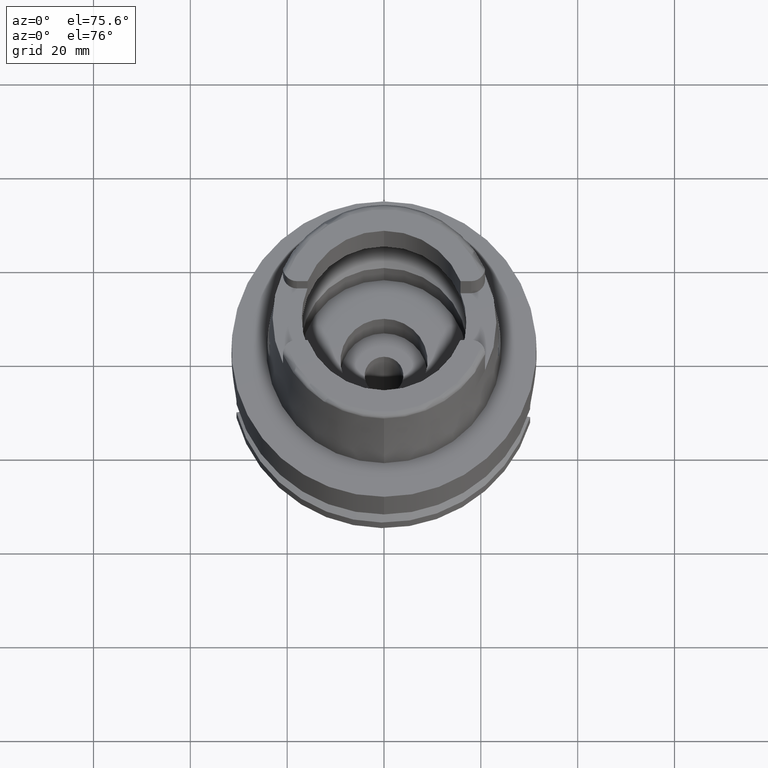
[diagram: clean part render]
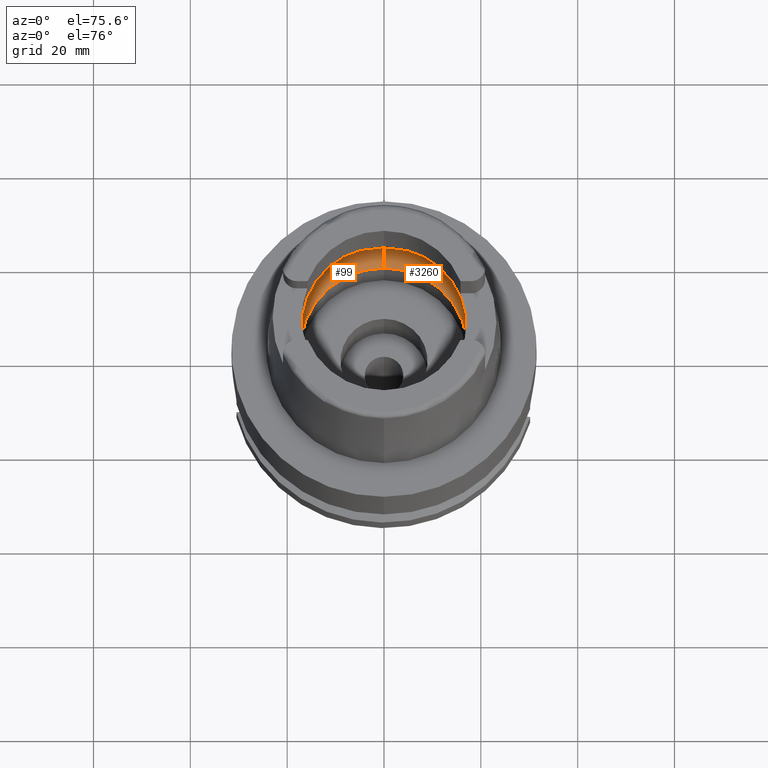
[diagram: same view with one multi-face feature highlighted, each face labeled with its STEP entity id]
A machine part, auxiliary view. The highlighted faces form ONE feature: a constant-radius fillet chain: 2 tangent blend faces with common blend radius 8 mm. The faces share edges in the B-rep.
Their STEP definitions:
[1] entity #3260 (Torus):
#36 = CIRCLE ( 'NONE', #2289, 20.00000000000001421 ) ;
#204 = CARTESIAN_POINT ( 'NONE',  ( 19.92840408989147960, -1.244367451165427463, 5.462313551788925636 ) ) ;
#230 = CARTESIAN_POINT ( 'NONE',  ( 19.92591688601885025, -1.321756895885540795, 5.490652547663943395 ) ) ;
#258 = CARTESIAN_POINT ( 'NONE',  ( 0.0000000000000000000, 17.25000000000000000, 0.1499999999999999944 ) ) ;
#344 = DIRECTION ( 'NONE',  ( 0.0000000000000000000, 0.0000000000000000000, -1.000000000000000000 ) ) ;
#485 = EDGE_CURVE ( 'NONE', #5537, #4419, #3639, .T. ) ;
#546 = B_SPLINE_CURVE_WITH_KNOTS ( 'NONE', 3,
 ( #3693, #5331, #2398, #3187, #2369, #2848, #4925, #1945, #4574, #4091, #1083, #639, #1479, #4517, #2345 ),
 .UNSPECIFIED., .F., .F.,
 ( 4, 2, 2, 1, 1, 1, 2, 2, 4 ),
 ( 0.0000000000000000000, 0.2500000000000015543, 0.3750000000000022204, 0.4375000000000023315, 0.4687500000000024425, 0.4843750000000026090, 0.4921875000000026090, 0.5000000000000025535, 1.000000000000000000 ),
 .UNSPECIFIED. ) ;
#602 = AXIS2_PLACEMENT_3D ( 'NONE', #2668, #1913, #5354 ) ;
#606 = CARTESIAN_POINT ( 'NONE',  ( 19.94501428475999916, -0.2480014564252240872, 5.250000000000000000 ) ) ;
#639 = CARTESIAN_POINT ( 'NONE',  ( 19.92547029497421818, 1.335024297797994697, 5.495681079272209502 ) ) ;
#985 = ORIENTED_EDGE ( 'NONE', *, *, #3016, .F. ) ;
#1020 = CARTESIAN_POINT ( 'NONE',  ( 19.92705978488601559, -1.286927501709047350, 5.477698479286130961 ) ) ;
#1038 = CARTESIAN_POINT ( 'NONE',  ( 0.0000000000000000000, -17.25000000000000000, 0.1500000000000999700 ) ) ;
#1079 = CARTESIAN_POINT ( 'NONE',  ( 19.88332298883960547, -2.178372382681698749, 5.921392606572648099 ) ) ;
#1083 = CARTESIAN_POINT ( 'NONE',  ( 19.92517807509134187, 1.343606312468685893, 5.498959791250855211 ) ) ;
#1087 = VERTEX_POINT ( 'NONE', #1038 ) ;
#1090 = VERTEX_POINT ( 'NONE', #1091 ) ;
#1091 = CARTESIAN_POINT ( 'NONE',  ( 0.0000000000000000000, -20.00000000000000000, 6.186348233825000875 ) ) ;
#1096 = DIRECTION ( 'NONE',  ( 0.0000000000000000000, 0.0000000000000000000, -1.000000000000000000 ) ) ;
#1105 = CARTESIAN_POINT ( 'NONE',  ( 19.93655177456163941, -0.9261205412522953706, 5.364559693844707766 ) ) ;
#1133 = CARTESIAN_POINT ( 'NONE',  ( 19.93856665794220717, -0.8185641889834129881, 5.338679171497147991 ) ) ;
#1350 = AXIS2_PLACEMENT_3D ( 'NONE', #5033, #344, #4248 ) ;
#1479 = CARTESIAN_POINT ( 'NONE',  ( 19.93856678297499840, 0.9459609421639848525, 5.348221403789784389 ) ) ;
#1501 = CARTESIAN_POINT ( 'NONE',  ( 19.93096047318056918, -1.157940144637055413, 5.432579051136762871 ) ) ;
#1556 = CARTESIAN_POINT ( 'NONE',  ( 19.94501428475999916, 0.0000000000000000000, 5.250000000000000000 ) ) ;
#1611 = CIRCLE ( 'NONE', #4025, 17.25000000000000000 ) ;
#1669 = DIRECTION ( 'NONE',  ( 0.0000000000000000000, 0.0000000000000000000, 1.000000000000000000 ) ) ;
#1688 = B_SPLINE_CURVE_WITH_KNOTS ( 'NONE', 3,
 ( #1556, #606, #5301, #1133, #1105, #4109, #1501, #204, #1020, #3602, #2807, #230, #1910, #1079, #4565 ),
 .UNSPECIFIED., .F., .F.,
 ( 4, 2, 2, 1, 1, 1, 2, 2, 4 ),
 ( 0.0000000000000000000, 0.2499999999999987232, 0.3749999999999981126, 0.4374999999999980016, 0.4687499999999979461, 0.4843749999999978906, 0.4921874999999978906, 0.4999999999999978906, 1.000000000000000000 ),
 .UNSPECIFIED. ) ;
#1726 = ORIENTED_EDGE ( 'NONE', *, *, #3214, .F. ) ;
#1748 = CIRCLE ( 'NONE', #2548, 7.999999999999992895 ) ;
#1832 = ORIENTED_EDGE ( 'NONE', *, *, #485, .F. ) ;
#1874 = CARTESIAN_POINT ( 'NONE',  ( 19.84575864665999845, -2.479085262491000030, 6.186348233825000875 ) ) ;
#1876 = TOROIDAL_SURFACE ( 'NONE', #1350, 12.00000000000000000, 8.000000000000000000 ) ;
#1910 = CARTESIAN_POINT ( 'NONE',  ( 19.90996057472179359, -1.795819818635375986, 5.670329850438289299 ) ) ;
#1913 = DIRECTION ( 'NONE',  ( 0.0000000000000000000, 0.0000000000000000000, -1.000000000000000000 ) ) ;
#1945 = CARTESIAN_POINT ( 'NONE',  ( 19.92208516036315658, 1.430034890835472972, 5.533133253826981957 ) ) ;
#2094 = CARTESIAN_POINT ( 'NONE',  ( 0.0000000000000000000, 12.00000000000000000, 6.186348233825000875 ) ) ;
#2286 = CARTESIAN_POINT ( 'NONE',  ( 19.84575864665999845, 2.479085262491000030, 6.186348233825000875 ) ) ;
#2289 = AXIS2_PLACEMENT_3D ( 'NONE', #3737, #1096, #4557 ) ;
#2345 = CARTESIAN_POINT ( 'NONE',  ( 19.94501428475999916, 0.0000000000000000000, 5.250000000000000000 ) ) ;
#2369 = CARTESIAN_POINT ( 'NONE',  ( 19.90654467646836778, 1.770005132905162482, 5.691879807082752762 ) ) ;
#2398 = CARTESIAN_POINT ( 'NONE',  ( 19.88058974809684898, 2.158412543077528056, 5.925203020060026304 ) ) ;
#2424 = CARTESIAN_POINT ( 'NONE',  ( 0.0000000000000000000, 20.00000000000000000, 6.186348233825000875 ) ) ;
#2445 = VERTEX_POINT ( 'NONE', #1874 ) ;
#2548 = AXIS2_PLACEMENT_3D ( 'NONE', #3744, #4192, #2836 ) ;
#2668 = CARTESIAN_POINT ( 'NONE',  ( 0.0000000000000000000, 0.0000000000000000000, 6.186348233825000875 ) ) ;
#2807 = CARTESIAN_POINT ( 'NONE',  ( 19.92607280685506410, -1.317062051809039680, 5.488890658979321380 ) ) ;
#2836 = DIRECTION ( 'NONE',  ( 0.0000000000000000000, -0.6562500000000006661, -0.7545435292281016393 ) ) ;
#2848 = CARTESIAN_POINT ( 'NONE',  ( 19.91448547043104256, 1.610506059394627654, 5.612923151450863735 ) ) ;
#2930 = DIRECTION ( 'NONE',  ( 0.0000000000000000000, 0.6562500000000006661, -0.7545435292281016393 ) ) ;
#3016 = EDGE_CURVE ( 'NONE', #4874, #2445, #1688, .T. ) ;
#3187 = CARTESIAN_POINT ( 'NONE',  ( 19.90056803128309326, 1.871071076466524818, 5.748193068415501372 ) ) ;
#3214 = EDGE_CURVE ( 'NONE', #1087, #4849, #1611, .T. ) ;
#3260 = ADVANCED_FACE ( 'NONE', ( #5496 ), #1876, .F. ) ;
#3267 = AXIS2_PLACEMENT_3D ( 'NONE', #2094, #4286, #2930 ) ;
#3301 = EDGE_LOOP ( 'NONE', ( #4997, #1832, #3362, #1726, #5380, #4596, #985 ) ) ;
#3353 = CIRCLE ( 'NONE', #3267, 7.999999999999992895 ) ;
#3362 = ORIENTED_EDGE ( 'NONE', *, *, #4251, .F. ) ;
#3399 = CARTESIAN_POINT ( 'NONE',  ( 0.0000000000000000000, 0.0000000000000000000, 0.1500000000000999700 ) ) ;
#3602 = CARTESIAN_POINT ( 'NONE',  ( 19.92646948702060428, -1.305026996780979109, 5.484399654313516059 ) ) ;
#3639 = CIRCLE ( 'NONE', #602, 20.00000000000000000 ) ;
#3693 = CARTESIAN_POINT ( 'NONE',  ( 19.84575864665999845, 2.479085262491000030, 6.186348233825000875 ) ) ;
#3737 = CARTESIAN_POINT ( 'NONE',  ( 0.0000000000000000000, 0.0000000000000000000, 6.186348233825000875 ) ) ;
#3744 = CARTESIAN_POINT ( 'NONE',  ( 0.0000000000000000000, -12.00000000000000000, 6.186348233825000875 ) ) ;
#3746 = DIRECTION ( 'NONE',  ( 0.0000000000000000000, -1.000000000000000000, 0.0000000000000000000 ) ) ;
#4025 = AXIS2_PLACEMENT_3D ( 'NONE', #3399, #1669, #3746 ) ;
#4091 = CARTESIAN_POINT ( 'NONE',  ( 19.92467636941975329, 1.358114210472420869, 5.504562079295808985 ) ) ;
#4109 = CARTESIAN_POINT ( 'NONE',  ( 19.93292498447662808, -1.081634996230508072, 5.408973391345252679 ) ) ;
#4113 = EDGE_CURVE ( 'NONE', #4419, #4874, #546, .T. ) ;
#4192 = DIRECTION ( 'NONE',  ( -1.000000000000000000, 0.0000000000000000000, 0.0000000000000000000 ) ) ;
#4248 = DIRECTION ( 'NONE',  ( 0.0000000000000000000, -1.000000000000000000, 0.0000000000000000000 ) ) ;
#4251 = EDGE_CURVE ( 'NONE', #4849, #5537, #3353, .T. ) ;
#4286 = DIRECTION ( 'NONE',  ( 1.000000000000000000, 0.0000000000000000000, 0.0000000000000000000 ) ) ;
#4419 = VERTEX_POINT ( 'NONE', #2286 ) ;
#4517 = CARTESIAN_POINT ( 'NONE',  ( 19.94501428475999560, 0.4960390492939688589, 5.249999999999998224 ) ) ;
#4557 = DIRECTION ( 'NONE',  ( 0.9922879323327794543, -0.1239542631244973381, 0.0000000000000000000 ) ) ;
#4565 = CARTESIAN_POINT ( 'NONE',  ( 19.84575864665999845, -2.479085262491000030, 6.186348233825000875 ) ) ;
#4574 = CARTESIAN_POINT ( 'NONE',  ( 19.92391580955442976, 1.379816291123153960, 5.513020213660540847 ) ) ;
#4596 = ORIENTED_EDGE ( 'NONE', *, *, #5087, .F. ) ;
#4839 = EDGE_CURVE ( 'NONE', #1087, #1090, #1748, .T. ) ;
#4849 = VERTEX_POINT ( 'NONE', #258 ) ;
#4874 = VERTEX_POINT ( 'NONE', #5031 ) ;
#4925 = CARTESIAN_POINT ( 'NONE',  ( 19.91819982395854893, 1.528784657196633257, 5.574824959534048219 ) ) ;
#4997 = ORIENTED_EDGE ( 'NONE', *, *, #4113, .F. ) ;
#5031 = CARTESIAN_POINT ( 'NONE',  ( 19.94501428475999916, 0.0000000000000000000, 5.250000000000000000 ) ) ;
#5033 = CARTESIAN_POINT ( 'NONE',  ( 0.0000000000000000000, 0.0000000000000000000, 6.186348233825000875 ) ) ;
#5087 = EDGE_CURVE ( 'NONE', #2445, #1090, #36, .T. ) ;
#5301 = CARTESIAN_POINT ( 'NONE',  ( 19.94340237805554494, -0.4850180025758214497, 5.274610396208616159 ) ) ;
#5331 = CARTESIAN_POINT ( 'NONE',  ( 19.86453976246540520, 2.328737270380783375, 6.053877863480496835 ) ) ;
#5354 = DIRECTION ( 'NONE',  ( 0.0000000000000000000, 1.000000000000000000, 0.0000000000000000000 ) ) ;
#5380 = ORIENTED_EDGE ( 'NONE', *, *, #4839, .T. ) ;
#5496 = FACE_OUTER_BOUND ( 'NONE', #3301, .T. ) ;
#5537 = VERTEX_POINT ( 'NONE', #2424 ) ;
[2] entity #99 (Torus):
#11 = CARTESIAN_POINT ( 'NONE',  ( -19.94501428475999916, 0.0000000000000000000, 5.250000000000000000 ) ) ;
#96 = EDGE_CURVE ( 'NONE', #4083, #5272, #3000, .T. ) ;
#99 = ADVANCED_FACE ( 'NONE', ( #4789 ), #2375, .F. ) ;
#258 = CARTESIAN_POINT ( 'NONE',  ( 0.0000000000000000000, 17.25000000000000000, 0.1499999999999999944 ) ) ;
#278 = ORIENTED_EDGE ( 'NONE', *, *, #1909, .F. ) ;
#302 = DIRECTION ( 'NONE',  ( -0.9922879323327794543, 0.1239542631244973381, 0.0000000000000000000 ) ) ;
#444 = CARTESIAN_POINT ( 'NONE',  ( -19.92391568384003975, -1.379820152731458194, 5.513021742193493502 ) ) ;
#449 = EDGE_CURVE ( 'NONE', #1090, #4083, #2922, .T. ) ;
#470 = CARTESIAN_POINT ( 'NONE',  ( -19.90654456091267122, -1.770007383642166365, 5.691881026689881828 ) ) ;
#564 = EDGE_LOOP ( 'NONE', ( #1635, #605, #2781, #5458, #883, #278, #4470 ) ) ;
#605 = ORIENTED_EDGE ( 'NONE', *, *, #4839, .F. ) ;
#676 = DIRECTION ( 'NONE',  ( 0.0000000000000000000, 0.0000000000000000000, -1.000000000000000000 ) ) ;
#733 = DIRECTION ( 'NONE',  ( 0.0000000000000000000, 1.000000000000000000, 0.0000000000000000000 ) ) ;
#743 = CARTESIAN_POINT ( 'NONE',  ( -19.92646960797195632, 1.305022935175742305, 5.484398146633392201 ) ) ;
#868 = CARTESIAN_POINT ( 'NONE',  ( -19.91819969907426469, -1.528787881860568909, 5.574826406028700276 ) ) ;
#883 = ORIENTED_EDGE ( 'NONE', *, *, #3743, .F. ) ;
#1038 = CARTESIAN_POINT ( 'NONE',  ( 0.0000000000000000000, -17.25000000000000000, 0.1500000000000999700 ) ) ;
#1087 = VERTEX_POINT ( 'NONE', #1038 ) ;
#1090 = VERTEX_POINT ( 'NONE', #1091 ) ;
#1091 = CARTESIAN_POINT ( 'NONE',  ( 0.0000000000000000000, -20.00000000000000000, 6.186348233825000875 ) ) ;
#1130 = CARTESIAN_POINT ( 'NONE',  ( -19.94501428476000271, 0.2480004543639204029, 5.249999999999999112 ) ) ;
#1154 = CARTESIAN_POINT ( 'NONE',  ( -19.92705990198736643, 1.286923474064824324, 5.477697007917331717 ) ) ;
#1285 = CARTESIAN_POINT ( 'NONE',  ( -19.90056792326586077, -1.871072945705443136, 5.748194156554196077 ) ) ;
#1347 = CARTESIAN_POINT ( 'NONE',  ( 0.0000000000000000000, 0.0000000000000000000, 6.186348233825000875 ) ) ;
#1373 = CARTESIAN_POINT ( 'NONE',  ( -19.86453971831057075, -2.328737623859657990, 6.053878174927803002 ) ) ;
#1505 = DIRECTION ( 'NONE',  ( 0.0000000000000000000, -1.000000000000000000, 0.0000000000000000000 ) ) ;
#1516 = CIRCLE ( 'NONE', #2319, 20.00000000000001421 ) ;
#1586 = CARTESIAN_POINT ( 'NONE',  ( -19.93096056484117895, 1.157936378929085297, 5.432577832209988244 ) ) ;
#1590 = AXIS2_PLACEMENT_3D ( 'NONE', #5277, #3630, #1505 ) ;
#1635 = ORIENTED_EDGE ( 'NONE', *, *, #449, .F. ) ;
#1717 = CARTESIAN_POINT ( 'NONE',  ( -19.92591701210031729, 1.321752758000885430, 5.490650989109542301 ) ) ;
#1748 = CIRCLE ( 'NONE', #2548, 7.999999999999992895 ) ;
#1761 = CARTESIAN_POINT ( 'NONE',  ( -19.94501428475999560, -0.4960410447439049797, 5.249999999999997335 ) ) ;
#1816 = CARTESIAN_POINT ( 'NONE',  ( -19.84575864665999845, -2.479085262491000030, 6.186348233825000875 ) ) ;
#1909 = EDGE_CURVE ( 'NONE', #5272, #2462, #3598, .T. ) ;
#2094 = CARTESIAN_POINT ( 'NONE',  ( 0.0000000000000000000, 12.00000000000000000, 6.186348233825000875 ) ) ;
#2213 = DIRECTION ( 'NONE',  ( 0.0000000000000000000, 0.0000000000000000000, -1.000000000000000000 ) ) ;
#2319 = AXIS2_PLACEMENT_3D ( 'NONE', #4523, #676, #302 ) ;
#2372 = CARTESIAN_POINT ( 'NONE',  ( -19.94501428475999916, 0.0000000000000000000, 5.250000000000000000 ) ) ;
#2375 = TOROIDAL_SURFACE ( 'NONE', #4000, 12.00000000000000000, 8.000000000000000000 ) ;
#2424 = CARTESIAN_POINT ( 'NONE',  ( 0.0000000000000000000, 20.00000000000000000, 6.186348233825000875 ) ) ;
#2462 = VERTEX_POINT ( 'NONE', #4438 ) ;
#2467 = CIRCLE ( 'NONE', #3186, 17.25000000000000000 ) ;
#2496 = CARTESIAN_POINT ( 'NONE',  ( -19.90996070568236576, 1.795817770063438124, 5.670328448962781209 ) ) ;
#2548 = AXIS2_PLACEMENT_3D ( 'NONE', #3744, #4192, #2836 ) ;
#2567 = CARTESIAN_POINT ( 'NONE',  ( -19.93856674119000516, -0.9459643382259051991, 5.348222180790206615 ) ) ;
#2576 = CARTESIAN_POINT ( 'NONE',  ( -19.88332307774798835, 2.178371670853991304, 5.921391979387152560 ) ) ;
#2781 = ORIENTED_EDGE ( 'NONE', *, *, #5398, .F. ) ;
#2835 = CARTESIAN_POINT ( 'NONE',  ( -19.94340238856859315, 0.4850161375187141410, 5.274610197870742034 ) ) ;
#2836 = DIRECTION ( 'NONE',  ( 0.0000000000000000000, -0.6562500000000006661, -0.7545435292281016393 ) ) ;
#2921 = CARTESIAN_POINT ( 'NONE',  ( -19.92607293039359462, 1.317057967890473247, 5.488889127078770969 ) ) ;
#2922 = CIRCLE ( 'NONE', #1590, 20.00000000000000000 ) ;
#2930 = DIRECTION ( 'NONE',  ( 0.0000000000000000000, 0.6562500000000006661, -0.7545435292281016393 ) ) ;
#2962 = CARTESIAN_POINT ( 'NONE',  ( -19.92517794959958266, -1.343610331871548880, 5.498961333861417167 ) ) ;
#3000 = B_SPLINE_CURVE_WITH_KNOTS ( 'NONE', 3,
 ( #1816, #1373, #5132, #1285, #470, #4710, #868, #3525, #444, #5247, #2962, #3876, #2567, #1761, #11 ),
 .UNSPECIFIED., .F., .F.,
 ( 4, 2, 2, 1, 1, 1, 2, 2, 4 ),
 ( 0.0000000000000000000, 0.2500000000000088263, 0.3750000000000130451, 0.4375000000000151545, 0.4687500000000162093, 0.4843750000000166533, 0.4921875000000166533, 0.5000000000000166533, 1.000000000000000000 ),
 .UNSPECIFIED. ) ;
#3186 = AXIS2_PLACEMENT_3D ( 'NONE', #4992, #4578, #733 ) ;
#3267 = AXIS2_PLACEMENT_3D ( 'NONE', #2094, #4286, #2930 ) ;
#3286 = CARTESIAN_POINT ( 'NONE',  ( -19.92840419822511322, 1.244363506211097814, 5.462312164958983196 ) ) ;
#3353 = CIRCLE ( 'NONE', #3267, 7.999999999999992895 ) ;
#3525 = CARTESIAN_POINT ( 'NONE',  ( -19.92208503460743785, -1.430038535462604621, 5.533134759045768902 ) ) ;
#3598 = B_SPLINE_CURVE_WITH_KNOTS ( 'NONE', 3,
 ( #4942, #1130, #2835, #4107, #3711, #5434, #1586, #3286, #1154, #743, #2921, #1717, #2496, #2576, #4615 ),
 .UNSPECIFIED., .F., .F.,
 ( 4, 2, 2, 1, 1, 1, 2, 2, 4 ),
 ( 0.0000000000000000000, 0.2499999999999958367, 0.3749999999999937272, 0.4374999999999923950, 0.4687499999999916178, 0.4843749999999915068, 0.4921874999999913958, 0.4999999999999913403, 1.000000000000000000 ),
 .UNSPECIFIED. ) ;
#3630 = DIRECTION ( 'NONE',  ( 0.0000000000000000000, 0.0000000000000000000, -1.000000000000000000 ) ) ;
#3711 = CARTESIAN_POINT ( 'NONE',  ( -19.93655182975511053, 0.9261173408848780708, 5.364558887407480547 ) ) ;
#3743 = EDGE_CURVE ( 'NONE', #2462, #5537, #1516, .T. ) ;
#3744 = CARTESIAN_POINT ( 'NONE',  ( 0.0000000000000000000, -12.00000000000000000, 6.186348233825000875 ) ) ;
#3876 = CARTESIAN_POINT ( 'NONE',  ( -19.92547016831343853, -1.335028391745478604, 5.495682638901202566 ) ) ;
#4000 = AXIS2_PLACEMENT_3D ( 'NONE', #1347, #2213, #4762 ) ;
#4061 = CARTESIAN_POINT ( 'NONE',  ( -19.84575864665999845, -2.479085262491000030, 6.186348233825000875 ) ) ;
#4083 = VERTEX_POINT ( 'NONE', #4061 ) ;
#4107 = CARTESIAN_POINT ( 'NONE',  ( -19.93856669999437514, 0.8185612903796806172, 5.338678534769514705 ) ) ;
#4192 = DIRECTION ( 'NONE',  ( -1.000000000000000000, 0.0000000000000000000, 0.0000000000000000000 ) ) ;
#4251 = EDGE_CURVE ( 'NONE', #4849, #5537, #3353, .T. ) ;
#4286 = DIRECTION ( 'NONE',  ( 1.000000000000000000, 0.0000000000000000000, 0.0000000000000000000 ) ) ;
#4438 = CARTESIAN_POINT ( 'NONE',  ( -19.84575864665999845, 2.479085262491000030, 6.186348233825000875 ) ) ;
#4470 = ORIENTED_EDGE ( 'NONE', *, *, #96, .F. ) ;
#4523 = CARTESIAN_POINT ( 'NONE',  ( 0.0000000000000000000, 0.0000000000000000000, 6.186348233825000875 ) ) ;
#4578 = DIRECTION ( 'NONE',  ( 0.0000000000000000000, 0.0000000000000000000, 1.000000000000000000 ) ) ;
#4615 = CARTESIAN_POINT ( 'NONE',  ( -19.84575864665999845, 2.479085262491000030, 6.186348233825000875 ) ) ;
#4710 = CARTESIAN_POINT ( 'NONE',  ( -19.91448534792932890, -1.610508948440541932, 5.612924528900559373 ) ) ;
#4762 = DIRECTION ( 'NONE',  ( 0.0000000000000000000, -1.000000000000000000, 0.0000000000000000000 ) ) ;
#4789 = FACE_OUTER_BOUND ( 'NONE', #564, .T. ) ;
#4839 = EDGE_CURVE ( 'NONE', #1087, #1090, #1748, .T. ) ;
#4849 = VERTEX_POINT ( 'NONE', #258 ) ;
#4942 = CARTESIAN_POINT ( 'NONE',  ( -19.94501428475999916, 0.0000000000000000000, 5.250000000000000000 ) ) ;
#4992 = CARTESIAN_POINT ( 'NONE',  ( 0.0000000000000000000, 0.0000000000000000000, 0.1500000000000999700 ) ) ;
#5132 = CARTESIAN_POINT ( 'NONE',  ( -19.88058967141835609, -2.158413397973425241, 5.925203673423997230 ) ) ;
#5247 = CARTESIAN_POINT ( 'NONE',  ( -19.92467624382531000, -1.358118166560061901, 5.504563616460891318 ) ) ;
#5272 = VERTEX_POINT ( 'NONE', #2372 ) ;
#5277 = CARTESIAN_POINT ( 'NONE',  ( 0.0000000000000000000, 0.0000000000000000000, 6.186348233825000875 ) ) ;
#5398 = EDGE_CURVE ( 'NONE', #4849, #1087, #2467, .T. ) ;
#5434 = CARTESIAN_POINT ( 'NONE',  ( -19.93292506332445058, 1.081631408177287756, 5.408972312847152963 ) ) ;
#5458 = ORIENTED_EDGE ( 'NONE', *, *, #4251, .T. ) ;
#5537 = VERTEX_POINT ( 'NONE', #2424 ) ;